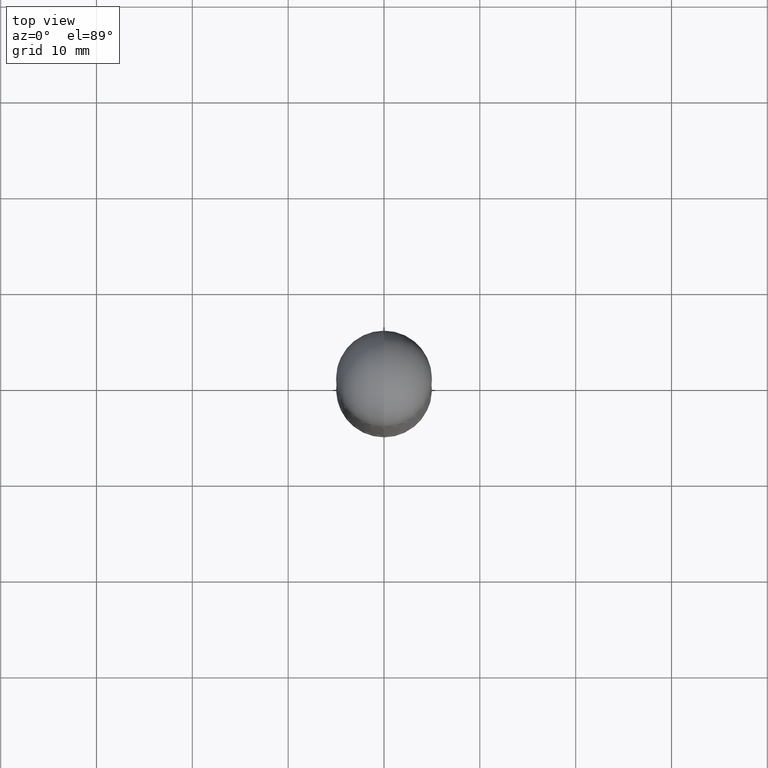
[diagram: clean part render]
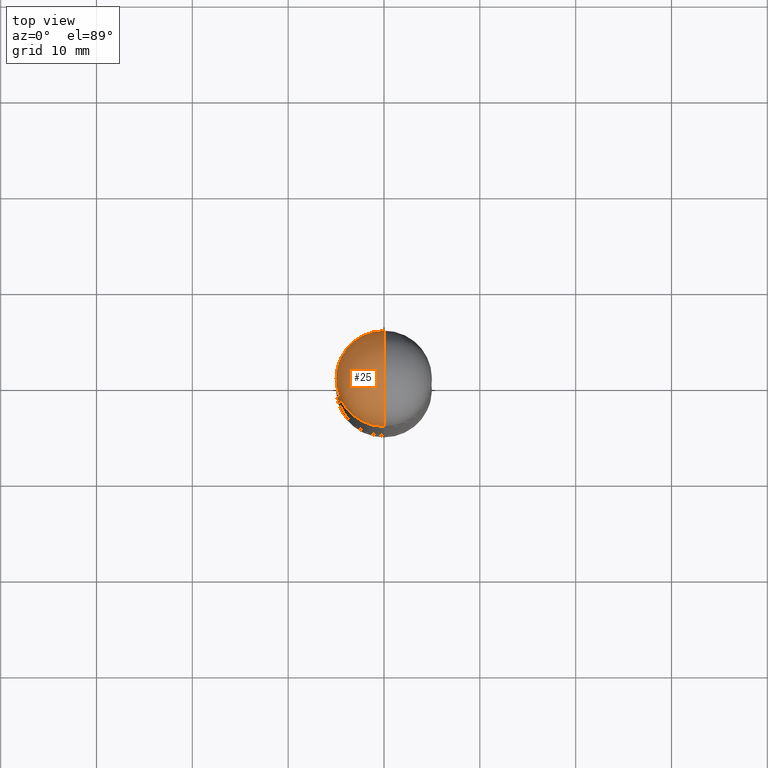
[diagram: same view with one face highlighted and labeled with its STEP entity id]
A machine part, top view. The second image highlights one B-rep face of the part: STEP entity #25.
In plain terms, the highlighted spherical surface has radius 5 mm.
Its self-contained STEP definition (entity closure, byte-faithful):
#21 = DIRECTION ( 'NONE',  ( -1.000000000000000000, 6.982962677686265922E-15, 4.883557194083112340E-29 ) ) ;
#25 = ADVANCED_FACE ( 'NONE', ( #168 ), #226, .T. ) ;
#96 = DIRECTION ( 'NONE',  ( 1.000000000000000000, -6.982962677686266711E-15, 0.000000000000000000 ) ) ;
#100 = AXIS2_PLACEMENT_3D ( 'NONE', #573, #542, #808 ) ;
#144 = CIRCLE ( 'NONE', #100, 0.1968500000000000527 ) ;
#146 = EDGE_CURVE ( 'NONE', #552, #396, #144, .T. ) ;
#155 = EDGE_CURVE ( 'NONE', #220, #680, #230, .T. ) ;
#168 = FACE_OUTER_BOUND ( 'NONE', #411, .T. ) ;
#178 = CARTESIAN_POINT ( 'NONE',  ( 6.408469978492040817E-29, -1.009653036392481565E-14, -0.1968499999999998307 ) ) ;
#179 = CIRCLE ( 'NONE', #646, 0.1968500000000001915 ) ;
#216 = ORIENTED_EDGE ( 'NONE', *, *, #584, .T. ) ;
#220 = VERTEX_POINT ( 'NONE', #392 ) ;
#224 = EDGE_CURVE ( 'NONE', #220, #552, #179, .T. ) ;
#226 = SPHERICAL_SURFACE ( 'NONE', #540, 0.1968500000000001915 ) ;
#230 = CIRCLE ( 'NONE', #562, 0.1968500000000001915 ) ;
#245 = ORIENTED_EDGE ( 'NONE', *, *, #224, .T. ) ;
#292 = CARTESIAN_POINT ( 'NONE',  ( 6.408469978492040817E-29, -1.009653036392481565E-14, -0.1968499999999998307 ) ) ;
#308 = ORIENTED_EDGE ( 'NONE', *, *, #155, .F. ) ;
#325 = CARTESIAN_POINT ( 'NONE',  ( -0.1968500000000000527, -7.653255758713905881E-15, -0.1968499999999998307 ) ) ;
#372 = ORIENTED_EDGE ( 'NONE', *, *, #146, .T. ) ;
#392 = CARTESIAN_POINT ( 'NONE',  ( 6.898277487190832498E-29, -1.077177487935548192E-14, 3.414809992080329023E-16 ) ) ;
#396 = VERTEX_POINT ( 'NONE', #325 ) ;
#411 = EDGE_LOOP ( 'NONE', ( #308, #245, #372, #216 ) ) ;
#417 = CIRCLE ( 'NONE', #578, 0.1968500000000000527 ) ;
#465 = DIRECTION ( 'NONE',  ( -6.982962677686265133E-15, -1.000000000000000000, 0.000000000000000000 ) ) ;
#530 = CARTESIAN_POINT ( 'NONE',  ( 1.374596203102607873E-15, 0.1968499999999902550, -0.1968499999999991645 ) ) ;
#540 = AXIS2_PLACEMENT_3D ( 'NONE', #292, #802, #666 ) ;
#542 = DIRECTION ( 'NONE',  ( 2.445468806185136597E-29, -3.491481338843145583E-15, 1.000000000000000000 ) ) ;
#552 = VERTEX_POINT ( 'NONE', #530 ) ;
#556 = DIRECTION ( 'NONE',  ( 6.860497997771529985E-15, 1.000000000000000000, 0.000000000000000000 ) ) ;
#562 = AXIS2_PLACEMENT_3D ( 'NONE', #178, #619, #556 ) ;
#573 = CARTESIAN_POINT ( 'NONE',  ( 6.739589756405927064E-29, -9.622347995784766935E-15, -0.1968499999999998307 ) ) ;
#578 = AXIS2_PLACEMENT_3D ( 'NONE', #803, #723, #96 ) ;
#584 = EDGE_CURVE ( 'NONE', #396, #680, #417, .T. ) ;
#619 = DIRECTION ( 'NONE',  ( 1.000000000000000000, -6.860497997771530774E-15, -4.840798879624142912E-29 ) ) ;
#646 = AXIS2_PLACEMENT_3D ( 'NONE', #650, #21, #465 ) ;
#650 = CARTESIAN_POINT ( 'NONE',  ( 6.408469978492040817E-29, -1.009653036392481565E-14, -0.1968499999999998307 ) ) ;
#666 = DIRECTION ( 'NONE',  ( 6.982962677686265922E-15, 1.000000000000000000, 3.469453890861392812E-15 ) ) ;
#667 = CARTESIAN_POINT ( 'NONE',  ( -1.350489030861260940E-15, -0.1968500000000099892, -0.1968500000000005246 ) ) ;
#680 = VERTEX_POINT ( 'NONE', #667 ) ;
#723 = DIRECTION ( 'NONE',  ( 2.445468806185136597E-29, -3.491481338843145583E-15, 1.000000000000000000 ) ) ;
#802 = DIRECTION ( 'NONE',  ( 1.000000000000000000, -6.982962677686265922E-15, -4.883557194083112340E-29 ) ) ;
#803 = CARTESIAN_POINT ( 'NONE',  ( 6.739589756405927064E-29, -9.622347995784766935E-15, -0.1968499999999998307 ) ) ;
#808 = DIRECTION ( 'NONE',  ( 1.000000000000000000, -6.982962677686266711E-15, 0.000000000000000000 ) ) ;